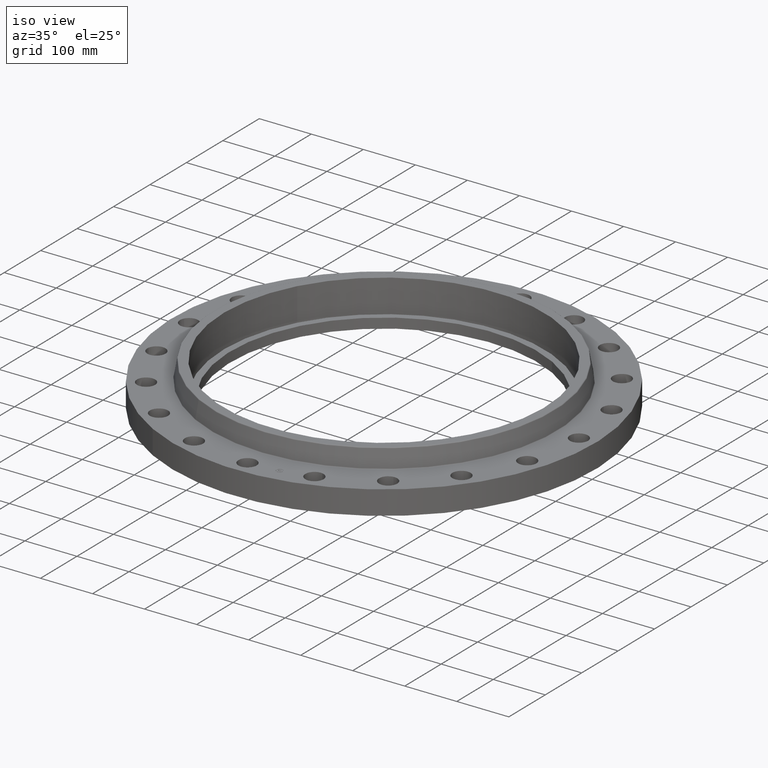
[diagram: clean part render]
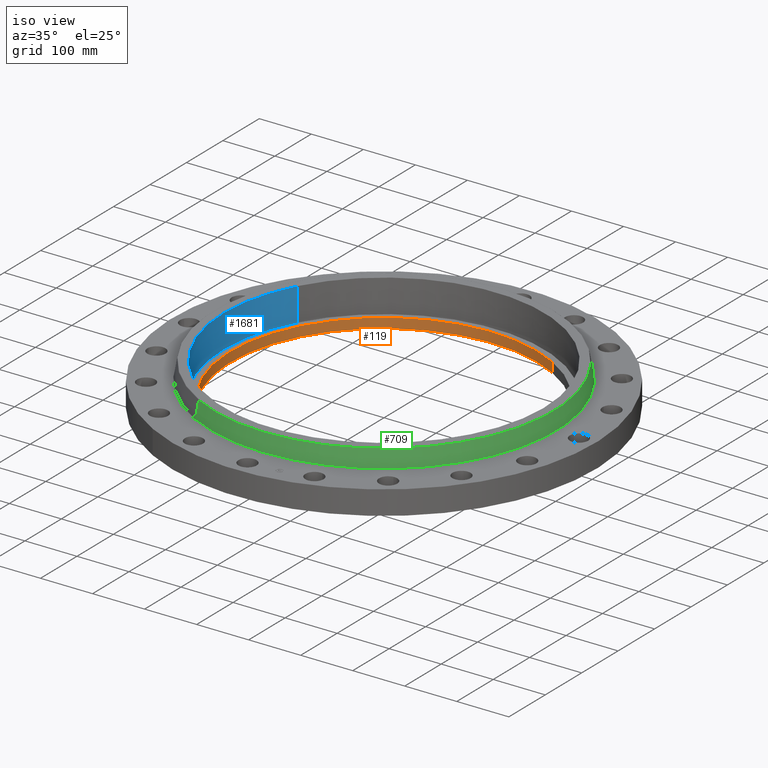
[diagram: same view with three faces highlighted in distinct colors, each labeled with its STEP entity id]
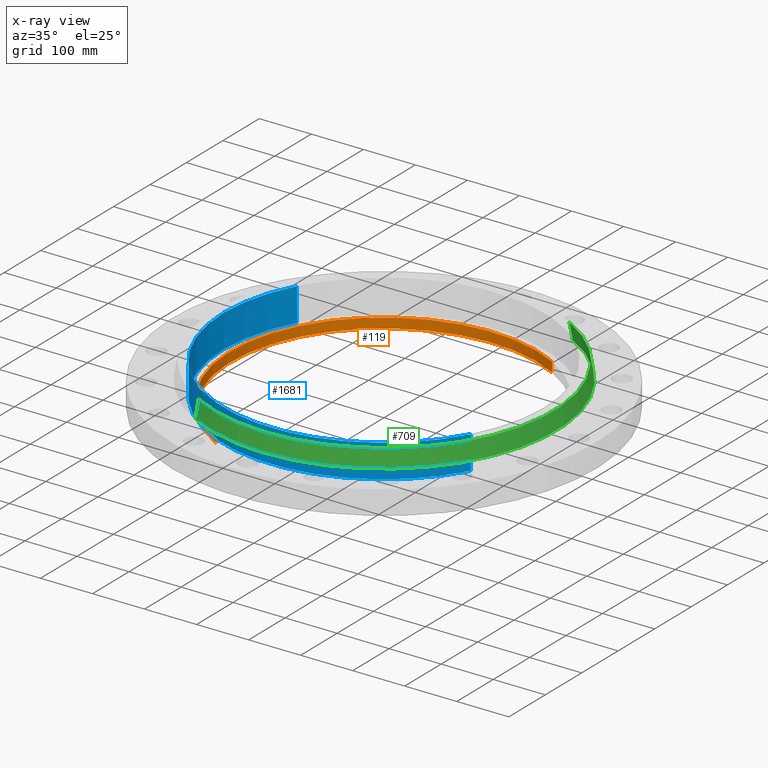
[diagram: x-ray of the same camera — body ghosted, the three highlighted faces saturated]
A machine part, iso view with three faces highlighted in distinct colors.
The next image is the same camera in x-ray (body ghosted, the three faces saturated) — at least one of them is partly hidden behind the body in this view.
Their STEP definitions:

[orange] entity #119 — the highlighted cylindrical surface (partial cylindrical patch) has radius 295.275 mm, axis along (0, 0, -1).
#60=AXIS2_PLACEMENT_3D('Circle Axis2P3D',#58,#59,$) ;
#80=AXIS2_PLACEMENT_3D('Cylinder Axis2P3D',#77,#78,#79) ;
#110=AXIS2_PLACEMENT_3D('Circle Axis2P3D',#108,#109,$) ;
#58=CARTESIAN_POINT('Axis2P3D Location',(1.39870617276E-016,1.04902962957E-016,0.690000000003)) ;
#62=CARTESIAN_POINT('Vertex',(-5.5733218863,-10.201897282,0.690000000003)) ;
#64=CARTESIAN_POINT('Vertex',(5.5733218863,10.201897282,0.690000000003)) ;
#77=CARTESIAN_POINT('Axis2P3D Location',(0.,0.,1.56375000001)) ;
#82=CARTESIAN_POINT('Line Origine',(5.5733218863,10.201897282,0.313750000001)) ;
#86=CARTESIAN_POINT('Vertex',(5.5733218863,10.201897282,-0.0625000000004)) ;
#93=CARTESIAN_POINT('Vertex',(-5.5733218863,-10.201897282,-0.0625000000004)) ;
#96=CARTESIAN_POINT('Line Origine',(-5.5733218863,-10.201897282,0.313750000001)) ;
#108=CARTESIAN_POINT('Axis2P3D Location',(0.,0.,-0.0625000000004)) ;
#59=DIRECTION('Axis2P3D Direction',(0.,0.,-0.0393700787402)) ;
#78=DIRECTION('Axis2P3D Direction',(0.,0.,-0.0393700787402)) ;
#79=DIRECTION('Axis2P3D XDirection',(-0.0188750212049,-0.0345504945626,0.)) ;
#83=DIRECTION('Vector Direction',(0.,0.,-0.0393700787402)) ;
#97=DIRECTION('Vector Direction',(0.,0.,-0.0393700787402)) ;
#109=DIRECTION('Axis2P3D Direction',(0.,0.,-0.0393700787402)) ;
#84=VECTOR('Line Direction',#83,0.0393700787402) ;
#98=VECTOR('Line Direction',#97,0.0393700787402) ;
#114=ORIENTED_EDGE('',*,*,#100,.T.) ;
#115=ORIENTED_EDGE('',*,*,#112,.T.) ;
#116=ORIENTED_EDGE('',*,*,#88,.F.) ;
#117=ORIENTED_EDGE('',*,*,#66,.F.) ;
#119=ADVANCED_FACE('PartBody',(#118),#81,.F.) ;
#61=CIRCLE('generated circle',#60,11.625) ;
#111=CIRCLE('generated circle',#110,11.625) ;
#81=CYLINDRICAL_SURFACE('generated cylinder',#80,11.625) ;
#66=EDGE_CURVE('',#63,#65,#61,.T.) ;
#88=EDGE_CURVE('',#65,#87,#85,.T.) ;
#100=EDGE_CURVE('',#63,#94,#99,.T.) ;
#112=EDGE_CURVE('',#94,#87,#111,.T.) ;
#113=EDGE_LOOP('',(#114,#115,#116,#117)) ;
#118=FACE_OUTER_BOUND('',#113,.T.) ;
#85=LINE('Line',#82,#84) ;
#99=LINE('Line',#96,#98) ;
#63=VERTEX_POINT('',#62) ;
#65=VERTEX_POINT('',#64) ;
#87=VERTEX_POINT('',#86) ;
#94=VERTEX_POINT('',#93) ;

[blue] entity #1681 — the highlighted cylindrical surface (partial cylindrical patch) has radius 307.975 mm, axis along (0, 0, -1).
#51=AXIS2_PLACEMENT_3D('Circle Axis2P3D',#49,#50,$) ;
#785=AXIS2_PLACEMENT_3D('Circle Axis2P3D',#783,#784,$) ;
#1656=AXIS2_PLACEMENT_3D('Cylinder Axis2P3D',#1653,#1654,#1655) ;
#44=CARTESIAN_POINT('Vertex',(-10.640688563,5.8130346556,0.690000000003)) ;
#46=CARTESIAN_POINT('Vertex',(10.640688563,-5.8130346556,0.690000000003)) ;
#49=CARTESIAN_POINT('Axis2P3D Location',(1.39870617276E-016,1.04902962957E-016,0.690000000003)) ;
#778=CARTESIAN_POINT('Vertex',(-10.640688563,5.8130346556,3.19000000001)) ;
#780=CARTESIAN_POINT('Vertex',(10.640688563,-5.8130346556,3.19000000001)) ;
#783=CARTESIAN_POINT('Axis2P3D Location',(8.39223703654E-016,-2.23792987641E-015,3.19000000001)) ;
#1653=CARTESIAN_POINT('Axis2P3D Location',(1.39870617276E-016,1.04902962957E-016,3.18606299214)) ;
#1658=CARTESIAN_POINT('Line Origine',(-10.640688563,5.8130346556,1.94000000001)) ;
#1663=CARTESIAN_POINT('Line Origine',(10.640688563,-5.8130346556,1.94000000001)) ;
#50=DIRECTION('Axis2P3D Direction',(0.,0.,-0.0393700787402)) ;
#784=DIRECTION('Axis2P3D Direction',(0.,0.,-0.0393700787402)) ;
#1654=DIRECTION('Axis2P3D Direction',(0.,0.,-0.0393700787402)) ;
#1655=DIRECTION('Axis2P3D XDirection',(0.0345504945626,-0.0188750212049,0.)) ;
#1659=DIRECTION('Vector Direction',(0.,0.,-0.0393700787402)) ;
#1664=DIRECTION('Vector Direction',(0.,0.,-0.0393700787402)) ;
#1660=VECTOR('Line Direction',#1659,0.0393700787402) ;
#1665=VECTOR('Line Direction',#1664,0.0393700787402) ;
#1676=ORIENTED_EDGE('',*,*,#787,.F.) ;
#1677=ORIENTED_EDGE('',*,*,#1667,.F.) ;
#1678=ORIENTED_EDGE('',*,*,#53,.T.) ;
#1679=ORIENTED_EDGE('',*,*,#1662,.T.) ;
#1681=ADVANCED_FACE('PartBody',(#1680),#1657,.F.) ;
#52=CIRCLE('generated circle',#51,12.125) ;
#786=CIRCLE('generated circle',#785,12.125) ;
#1657=CYLINDRICAL_SURFACE('generated cylinder',#1656,12.125) ;
#53=EDGE_CURVE('',#47,#45,#52,.T.) ;
#787=EDGE_CURVE('',#781,#779,#786,.T.) ;
#1662=EDGE_CURVE('',#45,#779,#1661,.F.) ;
#1667=EDGE_CURVE('',#47,#781,#1666,.F.) ;
#1675=EDGE_LOOP('',(#1676,#1677,#1678,#1679)) ;
#1680=FACE_OUTER_BOUND('',#1675,.T.) ;
#1661=LINE('Line',#1658,#1660) ;
#1666=LINE('Line',#1663,#1665) ;
#45=VERTEX_POINT('',#44) ;
#47=VERTEX_POINT('',#46) ;
#779=VERTEX_POINT('',#778) ;
#781=VERTEX_POINT('',#780) ;

[green] entity #709 — the highlighted conical surface has half-angle 10 deg.
#645=AXIS2_PLACEMENT_3D('Circle Axis2P3D',#643,#644,$) ;
#682=AXIS2_PLACEMENT_3D('Cone Axis2P3D',#679,#680,#681) ;
#693=AXIS2_PLACEMENT_3D('Circle Axis2P3D',#691,#692,$) ;
#640=CARTESIAN_POINT('Vertex',(6.25710616251,11.4535560039,1.85958110935)) ;
#643=CARTESIAN_POINT('Axis2P3D Location',(0.,0.,1.85958110935)) ;
#647=CARTESIAN_POINT('Vertex',(-6.25710616251,-11.4535560039,1.85958110935)) ;
#679=CARTESIAN_POINT('Axis2P3D Location',(0.,0.,3.14041889067)) ;
#684=CARTESIAN_POINT('Line Origine',(6.20296793039,11.3544566347,2.50000000001)) ;
#688=CARTESIAN_POINT('Vertex',(6.14882969826,11.2553572656,3.14041889067)) ;
#691=CARTESIAN_POINT('Axis2P3D Location',(0.,0.,3.14041889067)) ;
#695=CARTESIAN_POINT('Vertex',(-6.14882969826,-11.2553572656,3.14041889067)) ;
#698=CARTESIAN_POINT('Line Origine',(-6.20296793039,-11.3544566347,2.50000000001)) ;
#644=DIRECTION('Axis2P3D Direction',(0.,0.,-0.0393700787402)) ;
#680=DIRECTION('Axis2P3D Direction',(0.,0.,-0.0393700787402)) ;
#681=DIRECTION('Axis2P3D XDirection',(-0.0188750212049,-0.0345504945626,0.)) ;
#685=DIRECTION('Vector Direction',(0.00327761303565,0.00599963041829,-0.03877195878)) ;
#692=DIRECTION('Axis2P3D Direction',(0.,0.,-0.0393700787402)) ;
#699=DIRECTION('Vector Direction',(-0.00327761303565,-0.00599963041829,-0.03877195878)) ;
#686=VECTOR('Line Direction',#685,0.0393700787402) ;
#700=VECTOR('Line Direction',#699,0.0393700787402) ;
#704=ORIENTED_EDGE('',*,*,#649,.F.) ;
#705=ORIENTED_EDGE('',*,*,#690,.T.) ;
#706=ORIENTED_EDGE('',*,*,#697,.T.) ;
#707=ORIENTED_EDGE('',*,*,#702,.F.) ;
#709=ADVANCED_FACE('PartBody',(#708),#683,.T.) ;
#646=CIRCLE('generated circle',#645,13.0512575127) ;
#694=CIRCLE('generated circle',#693,12.825411254) ;
#683=CONICAL_SURFACE('Cone',#682,12.825411254,0.174532925199) ;
#649=EDGE_CURVE('',#641,#648,#646,.T.) ;
#690=EDGE_CURVE('',#641,#689,#687,.F.) ;
#697=EDGE_CURVE('',#689,#696,#694,.T.) ;
#702=EDGE_CURVE('',#648,#696,#701,.F.) ;
#703=EDGE_LOOP('',(#704,#705,#706,#707)) ;
#708=FACE_OUTER_BOUND('',#703,.T.) ;
#687=LINE('Line',#684,#686) ;
#701=LINE('Line',#698,#700) ;
#641=VERTEX_POINT('',#640) ;
#648=VERTEX_POINT('',#647) ;
#689=VERTEX_POINT('',#688) ;
#696=VERTEX_POINT('',#695) ;